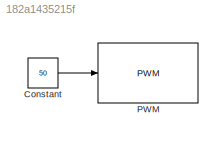
MODEL slx_182a1435215f
KIND model
CONFIG AbsTol = auto
CONFIG EnableMultiTasking = on
CONFIG FixedStep = auto
CONFIG MaxStep = auto
CONFIG MinStep = auto
CONFIG RelTol = 1e-3
CONFIG SampleTimeConstraint = Unconstrained
CONFIG Solver = FixedStepDiscrete
CONFIG SolverName = FixedStepDiscrete
CONFIG StartTime = 0.0
CONFIG StopTime = 10.0
BLOCK [Constant] Constant
  Value = 50
BLOCK [Reference] PWM  REF=frdmkl25zlib/PWM
  Ports = [1]
  SourceBlock = frdmkl25zlib/PWM
  SourceType = PWM Output
LINE Constant:1 -> PWM:1
